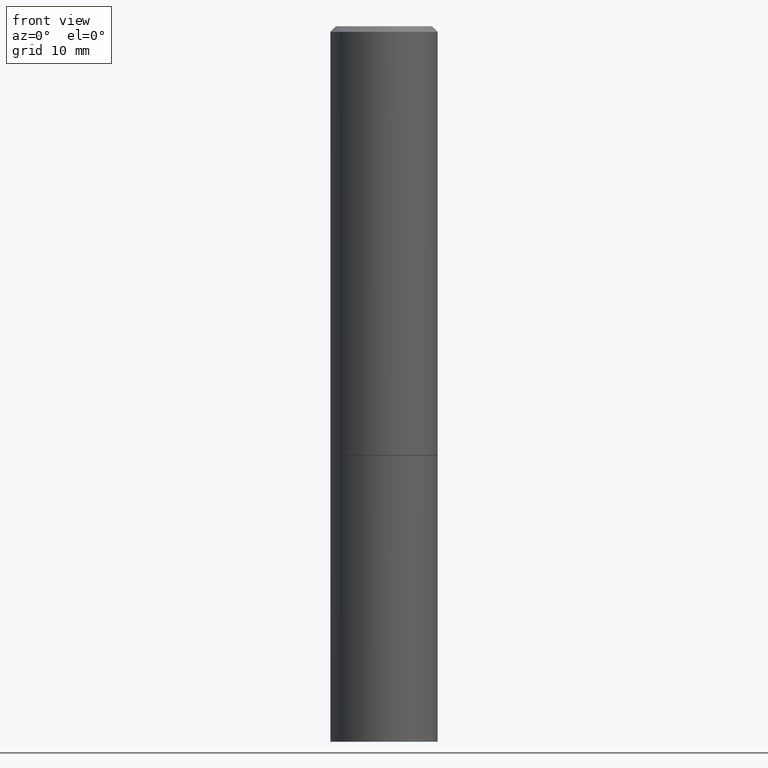
[diagram: clean part render]
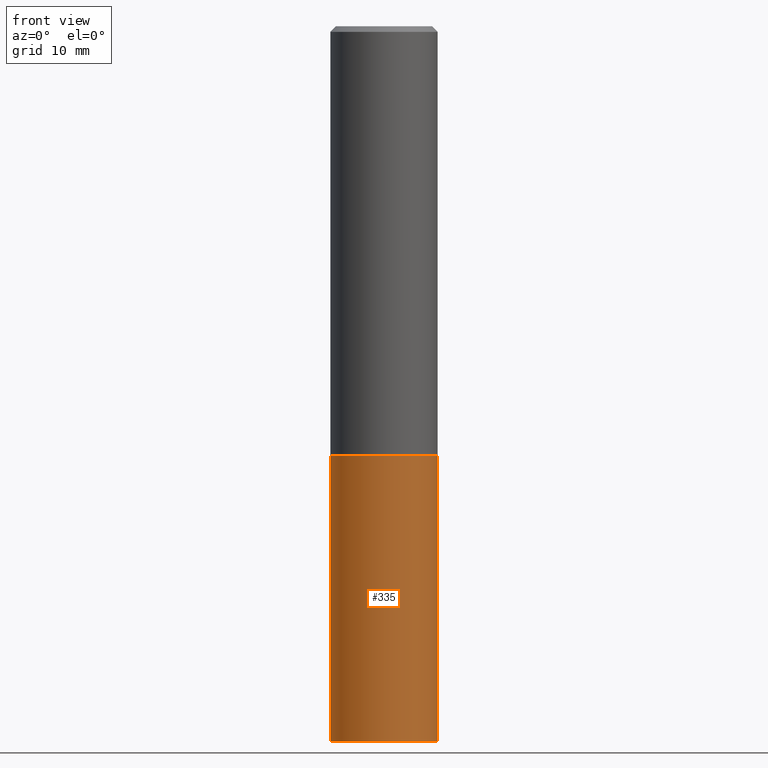
[diagram: same view with one face highlighted and labeled with its STEP entity id]
A machine part, front view. The second image highlights one B-rep face of the part: STEP entity #335.
In plain terms, the highlighted cylindrical surface (partial cylindrical patch) has radius 4.7625 mm, axis along (-0, 0, 1).
Its self-contained STEP definition (entity closure, byte-faithful):
#2 = VECTOR ( 'NONE', #286, 39.37007874015748143 ) ;
#4 = DIRECTION ( 'NONE',  ( -2.445468806185136597E-29, 3.491481338843145583E-15, 1.000000000000000000 ) ) ;
#8 = EDGE_LOOP ( 'NONE', ( #242, #91, #341, #100 ) ) ;
#10 = CARTESIAN_POINT ( 'NONE',  ( 0.000000000000000000, 0.000000000000000000, 0.000000000000000000 ) ) ;
#19 = DIRECTION ( 'NONE',  ( -2.445468806185136597E-29, 3.491481338843145583E-15, 1.000000000000000000 ) ) ;
#20 = VERTEX_POINT ( 'NONE', #285 ) ;
#32 = CARTESIAN_POINT ( 'NONE',  ( 0.1875000000000000278, -6.546527510330893974E-15, -1.500000000000000222 ) ) ;
#39 = LINE ( 'NONE', #95, #2 ) ;
#65 = CYLINDRICAL_SURFACE ( 'NONE', #107, 0.1875000000000000278 ) ;
#70 = FACE_OUTER_BOUND ( 'NONE', #8, .T. ) ;
#91 = ORIENTED_EDGE ( 'NONE', *, *, #185, .T. ) ;
#95 = CARTESIAN_POINT ( 'NONE',  ( 0.1875000000000000278, -1.309305502066175008E-15, 9.142831454617381013E-30 ) ) ;
#100 = ORIENTED_EDGE ( 'NONE', *, *, #363, .F. ) ;
#101 = VECTOR ( 'NONE', #246, 39.37007874015748143 ) ;
#103 = CIRCLE ( 'NONE', #122, 0.1875000000000000278 ) ;
#107 = AXIS2_PLACEMENT_3D ( 'NONE', #10, #19, #159 ) ;
#111 = DIRECTION ( 'NONE',  ( 1.000000000000000000, -6.982962677686266711E-15, 0.000000000000000000 ) ) ;
#120 = CARTESIAN_POINT ( 'NONE',  ( 0.1875000000000000278, -1.003800884917403995E-14, -2.500000000000000000 ) ) ;
#122 = AXIS2_PLACEMENT_3D ( 'NONE', #231, #216, #347 ) ;
#143 = EDGE_CURVE ( 'NONE', #252, #20, #253, .T. ) ;
#159 = DIRECTION ( 'NONE',  ( 1.000000000000000000, -6.982962677686265922E-15, 4.876176775795935793E-29 ) ) ;
#185 = EDGE_CURVE ( 'NONE', #252, #270, #299, .T. ) ;
#188 = AXIS2_PLACEMENT_3D ( 'NONE', #342, #4, #111 ) ;
#216 = DIRECTION ( 'NONE',  ( -2.445468806185136597E-29, 3.491481338843145583E-15, 1.000000000000000000 ) ) ;
#229 = CARTESIAN_POINT ( 'NONE',  ( -0.1875000000000000278, -5.650695048136103317E-15, -2.500000000000000000 ) ) ;
#231 = CARTESIAN_POINT ( 'NONE',  ( 3.668203209277704895E-29, -5.237222008264718177E-15, -1.500000000000000222 ) ) ;
#242 = ORIENTED_EDGE ( 'NONE', *, *, #143, .F. ) ;
#246 = DIRECTION ( 'NONE',  ( -2.445468806185136877E-29, 3.491481338843145188E-15, 1.000000000000000000 ) ) ;
#249 = CARTESIAN_POINT ( 'NONE',  ( -0.1875000000000000278, 1.332267629550188046E-15, -9.223003294227947991E-30 ) ) ;
#252 = VERTEX_POINT ( 'NONE', #229 ) ;
#253 = LINE ( 'NONE', #249, #101 ) ;
#263 = VERTEX_POINT ( 'NONE', #32 ) ;
#270 = VERTEX_POINT ( 'NONE', #120 ) ;
#272 = EDGE_CURVE ( 'NONE', #270, #263, #39, .T. ) ;
#285 = CARTESIAN_POINT ( 'NONE',  ( -0.1875000000000000278, -5.650695048136103317E-15, -1.500000000000000222 ) ) ;
#286 = DIRECTION ( 'NONE',  ( -2.445468806185136877E-29, 3.491481338843145188E-15, 1.000000000000000000 ) ) ;
#299 = CIRCLE ( 'NONE', #188, 0.1875000000000000278 ) ;
#335 = ADVANCED_FACE ( 'NONE', ( #70 ), #65, .T. ) ;
#341 = ORIENTED_EDGE ( 'NONE', *, *, #272, .T. ) ;
#342 = CARTESIAN_POINT ( 'NONE',  ( 6.113672015462842613E-29, -8.728703347107864943E-15, -2.500000000000000000 ) ) ;
#347 = DIRECTION ( 'NONE',  ( 1.000000000000000000, -6.982962677686266711E-15, 0.000000000000000000 ) ) ;
#363 = EDGE_CURVE ( 'NONE', #20, #263, #103, .T. ) ;